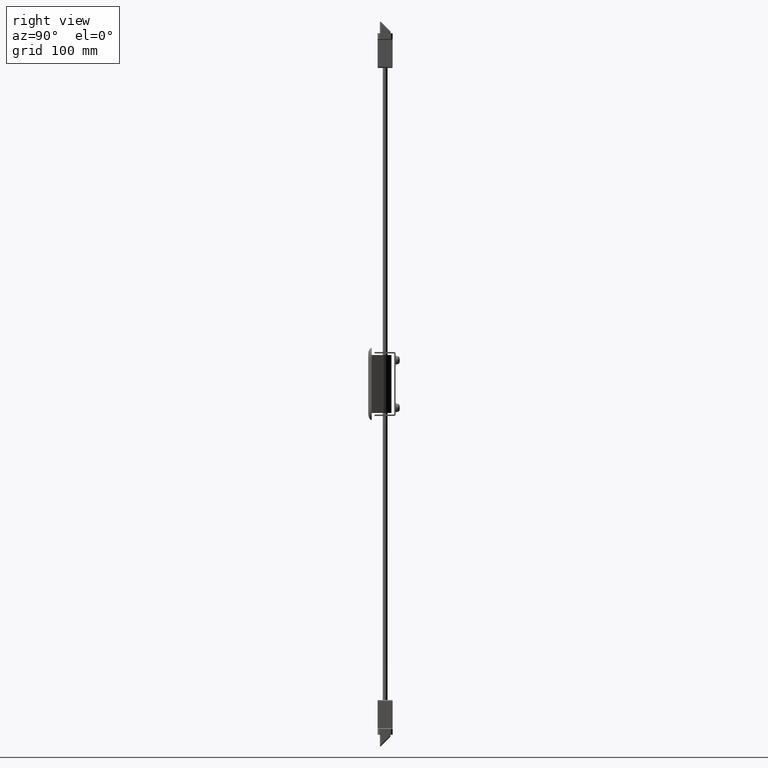
[diagram: clean part render]
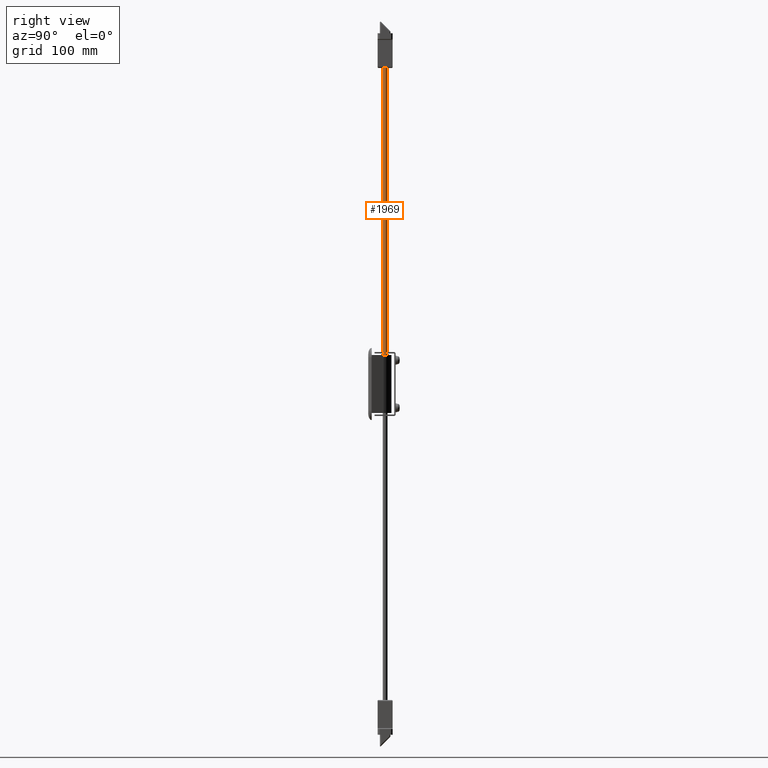
[diagram: same view with one face highlighted and labeled with its STEP entity id]
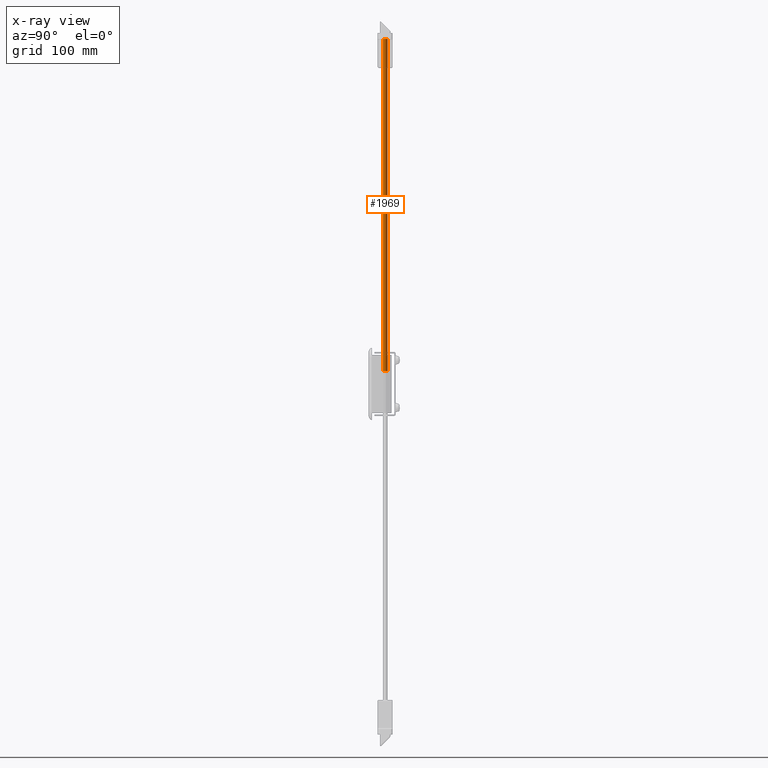
[diagram: x-ray of the same camera — body ghosted, the highlighted face saturated]
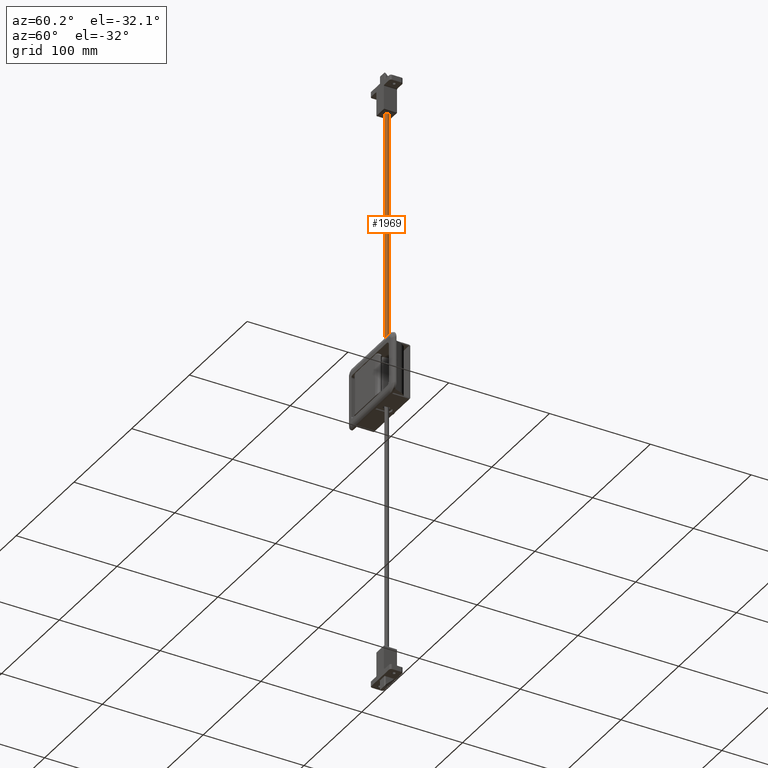
[diagram: same view with one face highlighted and labeled with its STEP entity id]
A machine part, right view. The second image highlights one B-rep face of the part: STEP entity #1969.
The next image is the same camera in x-ray: the body ghosted, the highlighted face saturated — about 0% of this face is hidden behind the body in this view.
A second angle (auxiliary view) of the same face is appended — the face is thin or edge-on in the first view.
In plain terms, the highlighted face is a freeform B-spline surface patch.
Its self-contained STEP definition (entity closure, byte-faithful):
#1845=CARTESIAN_POINT('',(27.472888714119076,6.958515923235950,3.849999999999993));
#1846=CARTESIAN_POINT('',(27.509850433536975,6.914810654325420,3.849999999999993));
#1847=CARTESIAN_POINT('',(27.549251257975421,6.873290848612492,3.849999999999993));
#1848=CARTESIAN_POINT('',(28.925960409362940,5.422542106587917,3.849999999999993));
#1849=CARTESIAN_POINT('',(30.376709151387509,6.799251257975425,3.849999999999993));
#1850=CARTESIAN_POINT('',(31.827457893412078,8.175960409362933,3.849999999999993));
#1851=CARTESIAN_POINT('',(30.450748742024579,9.626709151387507,3.849999999999993));
#1852=CARTESIAN_POINT('',(29.074039590637071,11.077457893412083,3.849999999999993));
#1853=CARTESIAN_POINT('',(27.623290848612491,9.700748742024574,3.849999999999993));
#1854=CARTESIAN_POINT('',(27.472888714119076,6.958515923235950,304.328750000000070));
#1855=CARTESIAN_POINT('',(27.509850433536975,6.914810654325420,304.328750000000010));
#1856=CARTESIAN_POINT('',(27.549251257975421,6.873290848612492,304.328750000000010));
#1857=CARTESIAN_POINT('',(28.925960409362940,5.422542106587917,304.328749999999960));
#1858=CARTESIAN_POINT('',(30.376709151387509,6.799251257975425,304.328750000000010));
#1859=CARTESIAN_POINT('',(31.827457893412078,8.175960409362933,304.328749999999960));
#1860=CARTESIAN_POINT('',(30.450748742024579,9.626709151387507,304.328750000000010));
#1861=CARTESIAN_POINT('',(29.074039590637071,11.077457893412083,304.328749999999960));
#1862=CARTESIAN_POINT('',(27.623290848612491,9.700748742024574,304.328750000000010));
#1870=(BOUNDED_SURFACE()B_SPLINE_SURFACE(2,1,((#1845,#1854),(#1846,#1855),(#1847,#1856),(#1848,#1857),(#1849,#1858),(#1850,#1859),(#1851,#1860),(#1852,#1861),(#1853,#1862)),.UNSPECIFIED.,.F.,.F.,.U.)B_SPLINE_SURFACE_WITH_KNOTS((3,2,2,2,3),(2,2),(0.0,0.132548339959391,3.446256838944157,6.759965337928922,10.073673836913690),(0.0,300.478750000000100),.UNSPECIFIED.)GEOMETRIC_REPRESENTATION_ITEM()RATIONAL_B_SPLINE_SURFACE(((0.977505800795127,0.977505800795127),(0.988284271247462,0.988284271247462),(1.0,1.0),(0.707106781186548,0.707106781186548),(1.0,1.0),(0.707106781186548,0.707106781186548),(1.0,1.0),(0.707106781186548,0.707106781186548),(1.0,1.0)))REPRESENTATION_ITEM('')SURFACE());
#1871=CARTESIAN_POINT('',(27.472888594426170,6.958515822011205,297.0));
#1872=VERTEX_POINT('',#1871);
#1873=CARTESIAN_POINT('',(28.999999364145250,6.250000000000101,297.0));
#1874=VERTEX_POINT('',#1873);
#1875=CARTESIAN_POINT('',(27.472888594426170,6.958515822011205,297.0));
#1876=CARTESIAN_POINT('',(27.682817169113559,6.709175007874692,297.000000000000510));
#1877=CARTESIAN_POINT('',(28.167507224386799,6.361652997915390,296.999999999999600));
#1878=CARTESIAN_POINT('',(28.746550299929190,6.249741007905684,297.000000000000230));
#1879=CARTESIAN_POINT('',(28.999999364145250,6.250000000000101,297.0));
#1880=B_SPLINE_CURVE_WITH_KNOTS('',3,(#1875,#1876,#1877,#1878,#1879),.UNSPECIFIED.,.F.,.U.,(4,1,4),(0.000000942405946,0.977436796245513,1.737815882343647),.UNSPECIFIED.);
#1881=EDGE_CURVE('',#1872,#1874,#1880,.T.);
#1882=ORIENTED_EDGE('',*,*,#1881,.F.);
#1883=CARTESIAN_POINT('',(27.472888594426170,6.958515822011205,10.999999999999989));
#1884=VERTEX_POINT('',#1883);
#1885=CARTESIAN_POINT('',(27.472888594426170,6.958515822011205,10.999999999999989));
#1886=CARTESIAN_POINT('',(27.472888594426170,6.958515822011205,297.0));
#1887=QUASI_UNIFORM_CURVE('',1,(#1885,#1886),.UNSPECIFIED.,.F.,.U.);
#1888=EDGE_CURVE('',#1884,#1872,#1887,.T.);
#1889=ORIENTED_EDGE('',*,*,#1888,.F.);
#1890=CARTESIAN_POINT('',(28.999999364145250,6.250000000000101,11.0));
#1891=VERTEX_POINT('',#1890);
#1892=CARTESIAN_POINT('',(27.472888594426170,6.958515822011205,10.999999999999989));
#1893=CARTESIAN_POINT('',(27.636403421750749,6.764879896127450,10.999999999999989));
#1894=CARTESIAN_POINT('',(28.095639676920051,6.394872129784554,11.000000000000011));
#1895=CARTESIAN_POINT('',(28.674087194777950,6.249317509343376,11.0));
#1896=CARTESIAN_POINT('',(28.999999364145250,6.250000000000101,11.0));
#1897=B_SPLINE_CURVE_WITH_KNOTS('',3,(#1892,#1893,#1894,#1895,#1896),.UNSPECIFIED.,.F.,.U.,(4,1,4),(0.000000942405946,0.760380028584163,1.737815882343647),.UNSPECIFIED.);
#1898=EDGE_CURVE('',#1884,#1891,#1897,.T.);
#1899=ORIENTED_EDGE('',*,*,#1898,.T.);
#1900=CARTESIAN_POINT('',(31.0,8.250000000000000,11.0));
#1901=VERTEX_POINT('',#1900);
#1902=CARTESIAN_POINT('',(28.999999364145250,6.250000000000101,11.0));
#1903=CARTESIAN_POINT('',(29.360150408441260,6.249105836917466,10.999999999999989));
#1904=CARTESIAN_POINT('',(30.079350580769951,6.449475891774197,11.000000000000020));
#1905=CARTESIAN_POINT('',(30.828079778021280,7.235616276129144,10.999999999999959));
#1906=CARTESIAN_POINT('',(31.000485193442390,7.922732875451940,11.000000000000041));
#1907=CARTESIAN_POINT('',(31.0,8.250000000000000,11.0));
#1908=B_SPLINE_CURVE_WITH_KNOTS('',3,(#1902,#1903,#1904,#1905,#1906,#1907),.UNSPECIFIED.,.F.,.U.,(4,1,1,4),(0.000002720879344,1.080127641058537,2.160036060612860,3.141908125883851),.UNSPECIFIED.);
#1909=EDGE_CURVE('',#1891,#1901,#1908,.T.);
#1910=ORIENTED_EDGE('',*,*,#1909,.T.);
#1911=CARTESIAN_POINT('',(29.000000635854750,10.249999999999901,11.0));
#1912=VERTEX_POINT('',#1911);
#1913=CARTESIAN_POINT('',(31.0,8.250000000000000,11.0));
#1914=CARTESIAN_POINT('',(31.001807691385750,8.675959719895868,11.0));
#1915=CARTESIAN_POINT('',(30.772287314878788,9.360531990027134,11.0));
#1916=CARTESIAN_POINT('',(29.980822272030242,10.077361107001050,11.0));
#1917=CARTESIAN_POINT('',(29.360195738204919,10.251027427421940,11.000000000000020));
#1918=CARTESIAN_POINT('',(29.000000635854750,10.249999999999901,11.0));
#1919=B_SPLINE_CURVE_WITH_KNOTS('',3,(#1913,#1914,#1915,#1916,#1917,#1918),.UNSPECIFIED.,.F.,.U.,(4,1,1,4),(0.000002724221595,1.276450148945566,2.061782734020913,3.141907409057390),.UNSPECIFIED.);
#1920=EDGE_CURVE('',#1901,#1912,#1919,.T.);
#1921=ORIENTED_EDGE('',*,*,#1920,.T.);
#1922=CARTESIAN_POINT('',(27.623290143555959,9.700747854103232,11.000000000000011));
#1923=VERTEX_POINT('',#1922);
#1924=CARTESIAN_POINT('',(29.000000635854750,10.249999999999901,11.0));
#1925=CARTESIAN_POINT('',(28.492986945665411,10.252537420921060,11.000000000000020));
#1926=CARTESIAN_POINT('',(27.989631909255170,10.050835920418530,11.000000000000011));
#1927=CARTESIAN_POINT('',(27.623290143555959,9.700747854103232,11.000000000000011));
#1928=B_SPLINE_CURVE_WITH_KNOTS('',3,(#1924,#1925,#1926,#1927),.UNSPECIFIED.,.F.,.U.,(4,4),(0.000000481332168,1.518580467098642),.UNSPECIFIED.);
#1929=EDGE_CURVE('',#1912,#1923,#1928,.T.);
#1930=ORIENTED_EDGE('',*,*,#1929,.T.);
#1931=CARTESIAN_POINT('',(27.623290133390871,9.700747844456894,296.999999999999720));
#1932=VERTEX_POINT('',#1931);
#1933=CARTESIAN_POINT('',(27.623290143555959,9.700747854103232,11.000000000000011));
#1934=CARTESIAN_POINT('',(27.623290133390871,9.700747844456894,296.999999999999720));
#1935=QUASI_UNIFORM_CURVE('',1,(#1933,#1934),.UNSPECIFIED.,.F.,.U.);
#1936=EDGE_CURVE('',#1923,#1932,#1935,.T.);
#1937=ORIENTED_EDGE('',*,*,#1936,.T.);
#1938=CARTESIAN_POINT('',(29.000000635854750,10.249999999999901,297.0));
#1939=VERTEX_POINT('',#1938);
#1940=CARTESIAN_POINT('',(29.000000635854750,10.249999999999901,297.0));
#1941=CARTESIAN_POINT('',(28.492983260598969,10.252526150887389,297.000000000000230));
#1942=CARTESIAN_POINT('',(27.989638251023081,10.050834313830171,296.999999999999890));
#1943=CARTESIAN_POINT('',(27.623290133390871,9.700747844456894,296.999999999999720));
#1944=B_SPLINE_CURVE_WITH_KNOTS('',3,(#1940,#1941,#1942,#1943),.UNSPECIFIED.,.F.,.U.,(4,4),(0.000000481332086,1.518580481116178),.UNSPECIFIED.);
#1945=EDGE_CURVE('',#1939,#1932,#1944,.T.);
#1946=ORIENTED_EDGE('',*,*,#1945,.F.);
#1947=CARTESIAN_POINT('',(31.0,8.250000000000000,297.0));
#1948=VERTEX_POINT('',#1947);
#1949=CARTESIAN_POINT('',(31.0,8.250000000000000,297.0));
#1950=CARTESIAN_POINT('',(31.001808082395218,8.675959617699540,297.0));
#1951=CARTESIAN_POINT('',(30.772286292151868,9.360532241208368,297.000000000000230));
#1952=CARTESIAN_POINT('',(29.980823825057609,10.077360776360100,296.999999999999720));
#1953=CARTESIAN_POINT('',(29.360193837417590,10.251027512199050,297.000000000000230));
#1954=CARTESIAN_POINT('',(29.000000635854750,10.249999999999901,297.0));
#1955=B_SPLINE_CURVE_WITH_KNOTS('',3,(#1949,#1950,#1951,#1952,#1953,#1954),.UNSPECIFIED.,.F.,.U.,(4,1,1,4),(0.000002724221595,1.276450148945566,2.061782734020913,3.141907409057390),.UNSPECIFIED.);
#1956=EDGE_CURVE('',#1948,#1939,#1955,.T.);
#1957=ORIENTED_EDGE('',*,*,#1956,.F.);
#1958=CARTESIAN_POINT('',(28.999999364145250,6.250000000000101,297.0));
#1959=CARTESIAN_POINT('',(29.360150408441250,6.249105836917467,296.999999999999770));
#1960=CARTESIAN_POINT('',(30.079350580769951,6.449475891774197,297.000000000000510));
#1961=CARTESIAN_POINT('',(30.828079778021291,7.235616276129139,296.999999999999200));
#1962=CARTESIAN_POINT('',(31.000485193442390,7.922732875451941,297.000000000001080));
#1963=CARTESIAN_POINT('',(31.0,8.250000000000000,297.0));
#1964=B_SPLINE_CURVE_WITH_KNOTS('',3,(#1958,#1959,#1960,#1961,#1962,#1963),.UNSPECIFIED.,.F.,.U.,(4,1,1,4),(0.000002720879344,1.080127641058537,2.160036060612860,3.141908125883851),.UNSPECIFIED.);
#1965=EDGE_CURVE('',#1874,#1948,#1964,.T.);
#1966=ORIENTED_EDGE('',*,*,#1965,.F.);
#1967=EDGE_LOOP('',(#1882,#1889,#1899,#1910,#1921,#1930,#1937,#1946,#1957,#1966));
#1968=FACE_OUTER_BOUND('',#1967,.T.);
#1969=ADVANCED_FACE('',(#1968),#1870,.T.);